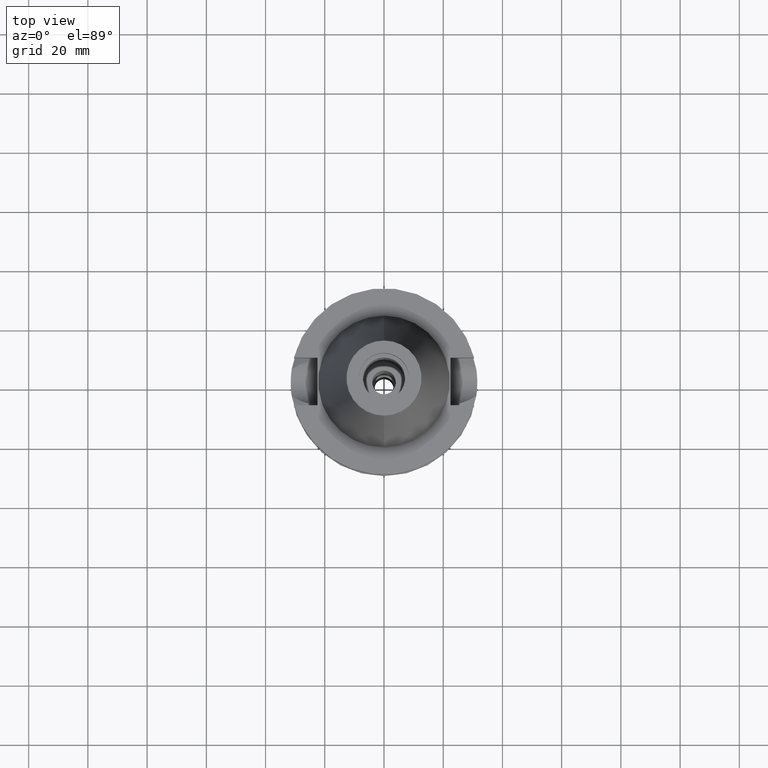
[diagram: clean part render]
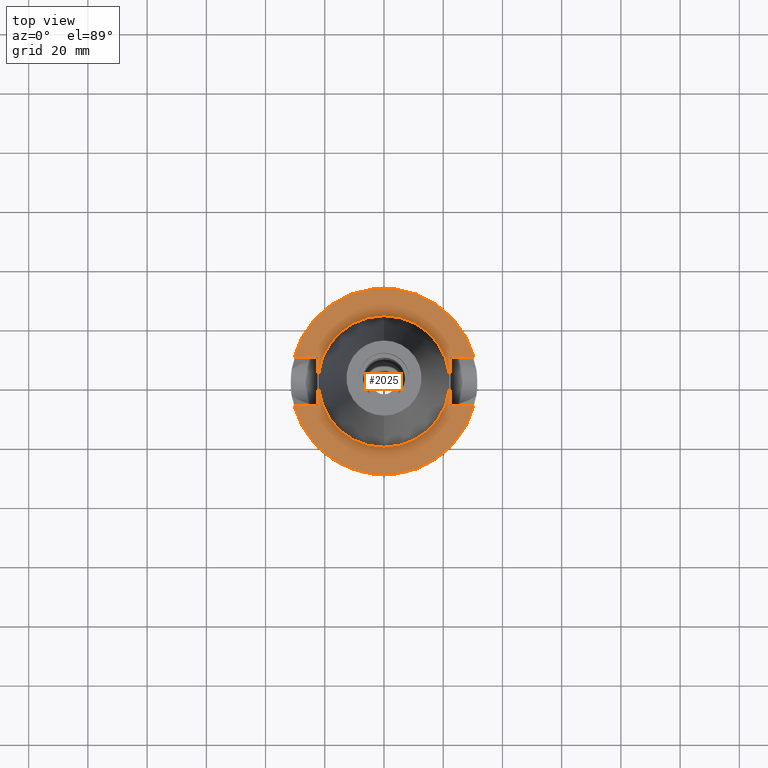
[diagram: same view with one face highlighted and labeled with its STEP entity id]
A machine part, top view. The second image highlights one B-rep face of the part: STEP entity #2025.
In plain terms, the highlighted planar face has unit normal (0, 0, -1).
Its self-contained STEP definition (entity closure, byte-faithful):
#2 = EDGE_LOOP ( 'NONE', ( #1979, #1189 ) ) ;
#3 = AXIS2_PLACEMENT_3D ( 'NONE', #3145, #1892, #2652 ) ;
#9 = CARTESIAN_POINT ( 'NONE',  ( 22.50000000000000000, 8.050000000000000711, -1.000000000000000000 ) ) ;
#36 = CARTESIAN_POINT ( 'NONE',  ( 30.45402272279000044, 8.050000000000000711, -1.000000000000000000 ) ) ;
#37 = ORIENTED_EDGE ( 'NONE', *, *, #583, .T. ) ;
#54 = CARTESIAN_POINT ( 'NONE',  ( 30.45402272279000044, -8.050000000000000711, -1.000000000000000000 ) ) ;
#61 = CARTESIAN_POINT ( 'NONE',  ( 22.50000000000000000, -8.050000000000000711, -1.000000000000000000 ) ) ;
#64 = EDGE_CURVE ( 'NONE', #2004, #362, #259, .T. ) ;
#101 = VERTEX_POINT ( 'NONE', #952 ) ;
#105 = VECTOR ( 'NONE', #2156, 1000.000000000000000 ) ;
#116 = AXIS2_PLACEMENT_3D ( 'NONE', #966, #2862, #644 ) ;
#123 = LINE ( 'NONE', #2083, #2162 ) ;
#137 = ORIENTED_EDGE ( 'NONE', *, *, #1492, .F. ) ;
#143 = EDGE_CURVE ( 'NONE', #155, #2907, #2166, .T. ) ;
#155 = VERTEX_POINT ( 'NONE', #1145 ) ;
#184 = CARTESIAN_POINT ( 'NONE',  ( 0.0000000000000000000, -22.22500000000000142, -1.000000000000000000 ) ) ;
#234 = CARTESIAN_POINT ( 'NONE',  ( 22.50000000000000000, 8.050000000000000711, -1.000000000000000000 ) ) ;
#239 = CARTESIAN_POINT ( 'NONE',  ( 0.0000000000000000000, 0.0000000000000000000, -1.000000000000000000 ) ) ;
#259 = CIRCLE ( 'NONE', #2375, 22.22500000000000142 ) ;
#348 = DIRECTION ( 'NONE',  ( 0.0000000000000000000, 0.0000000000000000000, 1.000000000000000000 ) ) ;
#362 = VERTEX_POINT ( 'NONE', #1734 ) ;
#390 = VERTEX_POINT ( 'NONE', #1278 ) ;
#467 = DIRECTION ( 'NONE',  ( 0.0000000000000000000, 1.000000000000000000, 0.0000000000000000000 ) ) ;
#551 = DIRECTION ( 'NONE',  ( 0.0000000000000000000, 1.000000000000000000, 0.0000000000000000000 ) ) ;
#583 = EDGE_CURVE ( 'NONE', #155, #640, #123, .T. ) ;
#584 = CARTESIAN_POINT ( 'NONE',  ( 0.0000000000000000000, 0.0000000000000000000, -1.000000000000000000 ) ) ;
#640 = VERTEX_POINT ( 'NONE', #705 ) ;
#644 = DIRECTION ( 'NONE',  ( 0.0000000000000000000, -1.000000000000000000, 0.0000000000000000000 ) ) ;
#654 = EDGE_CURVE ( 'NONE', #101, #640, #2613, .T. ) ;
#682 = CARTESIAN_POINT ( 'NONE',  ( 0.0000000000000000000, 0.0000000000000000000, -1.000000000000000000 ) ) ;
#705 = CARTESIAN_POINT ( 'NONE',  ( -22.50000000000000000, 8.050000000000000711, -1.000000000000000000 ) ) ;
#880 = FACE_BOUND ( 'NONE', #2, .T. ) ;
#887 = VECTOR ( 'NONE', #3189, 1000.000000000000000 ) ;
#952 = CARTESIAN_POINT ( 'NONE',  ( -22.50000000000000000, -8.050000000000000711, -1.000000000000000000 ) ) ;
#966 = CARTESIAN_POINT ( 'NONE',  ( 0.0000000000000000000, 0.0000000000000000000, -1.000000000000000000 ) ) ;
#1136 = FACE_OUTER_BOUND ( 'NONE', #2674, .T. ) ;
#1145 = CARTESIAN_POINT ( 'NONE',  ( -30.45402272279000044, 8.050000000000000711, -1.000000000000000000 ) ) ;
#1189 = ORIENTED_EDGE ( 'NONE', *, *, #64, .F. ) ;
#1259 = VECTOR ( 'NONE', #2176, 1000.000000000000000 ) ;
#1278 = CARTESIAN_POINT ( 'NONE',  ( 22.50000000000000000, 8.050000000000000711, -1.000000000000000000 ) ) ;
#1294 = AXIS2_PLACEMENT_3D ( 'NONE', #682, #2854, #3106 ) ;
#1325 = DIRECTION ( 'NONE',  ( 0.0000000000000000000, -1.000000000000000000, 0.0000000000000000000 ) ) ;
#1366 = ORIENTED_EDGE ( 'NONE', *, *, #1886, .F. ) ;
#1424 = CARTESIAN_POINT ( 'NONE',  ( -30.45402272279000044, -8.050000000000000711, -1.000000000000000000 ) ) ;
#1427 = EDGE_CURVE ( 'NONE', #2047, #101, #1663, .T. ) ;
#1492 = EDGE_CURVE ( 'NONE', #3072, #2047, #2964, .T. ) ;
#1553 = EDGE_CURVE ( 'NONE', #362, #2004, #3166, .T. ) ;
#1568 = AXIS2_PLACEMENT_3D ( 'NONE', #239, #2771, #551 ) ;
#1642 = LINE ( 'NONE', #2124, #105 ) ;
#1655 = VECTOR ( 'NONE', #1964, 1000.000000000000000 ) ;
#1663 = LINE ( 'NONE', #2649, #1259 ) ;
#1693 = PLANE ( 'NONE',  #1294 ) ;
#1734 = CARTESIAN_POINT ( 'NONE',  ( 0.0000000000000000000, 22.22500000000000142, -1.000000000000000000 ) ) ;
#1775 = ORIENTED_EDGE ( 'NONE', *, *, #654, .F. ) ;
#1886 = EDGE_CURVE ( 'NONE', #3181, #3072, #1642, .T. ) ;
#1892 = DIRECTION ( 'NONE',  ( 0.0000000000000000000, 0.0000000000000000000, -1.000000000000000000 ) ) ;
#1952 = ORIENTED_EDGE ( 'NONE', *, *, #1427, .F. ) ;
#1957 = VECTOR ( 'NONE', #467, 1000.000000000000000 ) ;
#1964 = DIRECTION ( 'NONE',  ( 0.0000000000000000000, -1.000000000000000000, 0.0000000000000000000 ) ) ;
#1979 = ORIENTED_EDGE ( 'NONE', *, *, #1553, .F. ) ;
#2004 = VERTEX_POINT ( 'NONE', #184 ) ;
#2025 = ADVANCED_FACE ( 'NONE', ( #1136, #880 ), #1693, .F. ) ;
#2047 = VERTEX_POINT ( 'NONE', #1424 ) ;
#2067 = DIRECTION ( 'NONE',  ( 1.000000000000000000, 3.550916904668000126E-14, 0.0000000000000000000 ) ) ;
#2083 = CARTESIAN_POINT ( 'NONE',  ( -30.45402272279000044, 8.050000000000000711, -1.000000000000000000 ) ) ;
#2124 = CARTESIAN_POINT ( 'NONE',  ( 22.50000000000000000, -8.050000000000000711, -1.000000000000000000 ) ) ;
#2156 = DIRECTION ( 'NONE',  ( 1.000000000000000000, 3.595582526110999949E-14, 0.0000000000000000000 ) ) ;
#2162 = VECTOR ( 'NONE', #2067, 1000.000000000000000 ) ;
#2166 = CIRCLE ( 'NONE', #3, 31.50000000000000000 ) ;
#2176 = DIRECTION ( 'NONE',  ( 1.000000000000000000, -3.550916904668000126E-14, 0.0000000000000000000 ) ) ;
#2375 = AXIS2_PLACEMENT_3D ( 'NONE', #584, #348, #1325 ) ;
#2405 = EDGE_CURVE ( 'NONE', #390, #2907, #2453, .T. ) ;
#2406 = CARTESIAN_POINT ( 'NONE',  ( -22.50000000000000000, -8.050000000000000711, -1.000000000000000000 ) ) ;
#2453 = LINE ( 'NONE', #234, #887 ) ;
#2613 = LINE ( 'NONE', #2406, #1957 ) ;
#2649 = CARTESIAN_POINT ( 'NONE',  ( -30.45402272279000044, -8.050000000000000711, -1.000000000000000000 ) ) ;
#2652 = DIRECTION ( 'NONE',  ( 0.0000000000000000000, 1.000000000000000000, 0.0000000000000000000 ) ) ;
#2674 = EDGE_LOOP ( 'NONE', ( #1952, #137, #1366, #2741, #2966, #2844, #37, #1775 ) ) ;
#2741 = ORIENTED_EDGE ( 'NONE', *, *, #3027, .F. ) ;
#2760 = LINE ( 'NONE', #9, #1655 ) ;
#2771 = DIRECTION ( 'NONE',  ( 0.0000000000000000000, 0.0000000000000000000, 1.000000000000000000 ) ) ;
#2844 = ORIENTED_EDGE ( 'NONE', *, *, #143, .F. ) ;
#2854 = DIRECTION ( 'NONE',  ( 0.0000000000000000000, 0.0000000000000000000, -1.000000000000000000 ) ) ;
#2862 = DIRECTION ( 'NONE',  ( 0.0000000000000000000, 0.0000000000000000000, -1.000000000000000000 ) ) ;
#2907 = VERTEX_POINT ( 'NONE', #36 ) ;
#2964 = CIRCLE ( 'NONE', #116, 31.50000000000000000 ) ;
#2966 = ORIENTED_EDGE ( 'NONE', *, *, #2405, .T. ) ;
#3027 = EDGE_CURVE ( 'NONE', #390, #3181, #2760, .T. ) ;
#3072 = VERTEX_POINT ( 'NONE', #54 ) ;
#3106 = DIRECTION ( 'NONE',  ( 0.0000000000000000000, -1.000000000000000000, 0.0000000000000000000 ) ) ;
#3145 = CARTESIAN_POINT ( 'NONE',  ( 0.0000000000000000000, 0.0000000000000000000, -1.000000000000000000 ) ) ;
#3166 = CIRCLE ( 'NONE', #1568, 22.22500000000000142 ) ;
#3181 = VERTEX_POINT ( 'NONE', #61 ) ;
#3189 = DIRECTION ( 'NONE',  ( 1.000000000000000000, -3.506251283225999947E-14, 0.0000000000000000000 ) ) ;